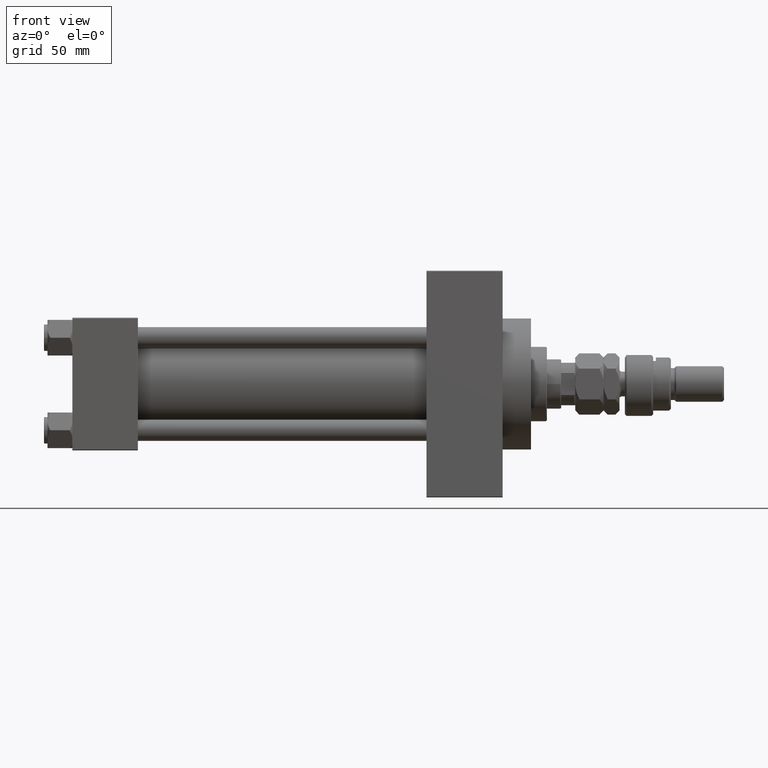
[diagram: clean part render]
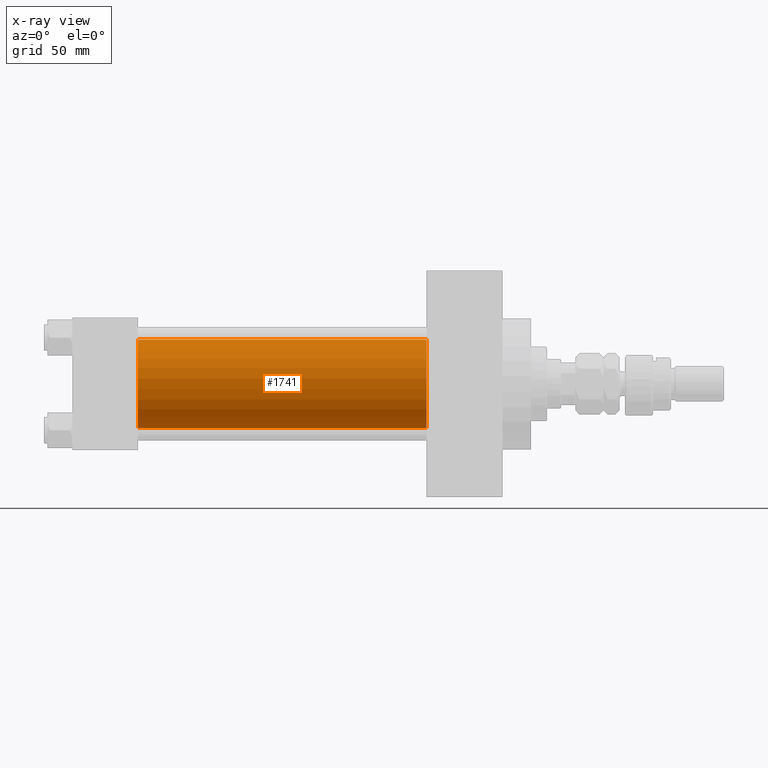
[diagram: x-ray — body ghosted, one internal face saturated and labeled with its STEP entity id]
A machine part, front view, then the same camera in x-ray: the body is ghosted and one INTERNAL B-rep face — a face not visible from any outside direction — is saturated and labeled: STEP entity #1741.
In plain terms, the highlighted cylindrical surface (partial cylindrical patch) has radius 25 mm, axis along (-1, -0, -0).
Its self-contained STEP definition (entity closure, byte-faithful):
#695 = EDGE_CURVE ( 'NONE', #18001, #48307, #4467, .T. ) ;
#868 = CARTESIAN_POINT ( 'NONE',  ( 37.00000000000000000, 4.595317839031724996E-16, -25.00000000000000000 ) ) ;
#936 = DIRECTION ( 'NONE',  ( 0.000000000000000000, 0.000000000000000000, -1.000000000000000000 ) ) ;
#976 = CIRCLE ( 'NONE', #50961, 25.00000000000000000 ) ;
#1741 = ADVANCED_FACE ( 'NONE', ( #2049 ), #22673, .F. ) ;
#2049 = FACE_OUTER_BOUND ( 'NONE', #13775, .T. ) ;
#2731 = VECTOR ( 'NONE', #35656, 1000.000000000000000 ) ;
#4467 = LINE ( 'NONE', #33042, #33812 ) ;
#5412 = CARTESIAN_POINT ( 'NONE',  ( 37.00000000000000000, -2.602085213965210642E-15, 0.000000000000000000 ) ) ;
#5842 = EDGE_CURVE ( 'NONE', #13309, #48307, #976, .T. ) ;
#5986 = AXIS2_PLACEMENT_3D ( 'NONE', #51010, #38602, #42070 ) ;
#7592 = DIRECTION ( 'NONE',  ( 0.000000000000000000, 0.000000000000000000, -1.000000000000000000 ) ) ;
#7838 = CARTESIAN_POINT ( 'NONE',  ( 200.0000000000000000, -2.602085213965210642E-15, 25.00000000000000000 ) ) ;
#7888 = EDGE_CURVE ( 'NONE', #12688, #13309, #52063, .T. ) ;
#12685 = CIRCLE ( 'NONE', #38064, 25.00000000000000000 ) ;
#12688 = VERTEX_POINT ( 'NONE', #47632 ) ;
#13309 = VERTEX_POINT ( 'NONE', #27093 ) ;
#13775 = EDGE_LOOP ( 'NONE', ( #30076, #30494, #16901, #42257 ) ) ;
#16901 = ORIENTED_EDGE ( 'NONE', *, *, #5842, .F. ) ;
#17142 = DIRECTION ( 'NONE',  ( -1.000000000000000000, -0.000000000000000000, -0.000000000000000000 ) ) ;
#18001 = VERTEX_POINT ( 'NONE', #33907 ) ;
#19511 = DIRECTION ( 'NONE',  ( 1.000000000000000000, 0.000000000000000000, 0.000000000000000000 ) ) ;
#20796 = DIRECTION ( 'NONE',  ( 1.000000000000000000, 0.000000000000000000, 0.000000000000000000 ) ) ;
#22673 = CYLINDRICAL_SURFACE ( 'NONE', #5986, 25.00000000000000000 ) ;
#27093 = CARTESIAN_POINT ( 'NONE',  ( 37.00000000000000000, -2.602085213965210642E-15, 25.00000000000000000 ) ) ;
#30076 = ORIENTED_EDGE ( 'NONE', *, *, #34254, .T. ) ;
#30494 = ORIENTED_EDGE ( 'NONE', *, *, #695, .T. ) ;
#33042 = CARTESIAN_POINT ( 'NONE',  ( 200.0000000000000000, 4.595317839031724996E-16, -25.00000000000000000 ) ) ;
#33812 = VECTOR ( 'NONE', #17142, 1000.000000000000000 ) ;
#33907 = CARTESIAN_POINT ( 'NONE',  ( 200.0000000000000000, 4.595317839031724996E-16, -25.00000000000000000 ) ) ;
#34254 = EDGE_CURVE ( 'NONE', #12688, #18001, #12685, .T. ) ;
#35656 = DIRECTION ( 'NONE',  ( -1.000000000000000000, -0.000000000000000000, -0.000000000000000000 ) ) ;
#38064 = AXIS2_PLACEMENT_3D ( 'NONE', #46373, #19511, #7592 ) ;
#38602 = DIRECTION ( 'NONE',  ( -1.000000000000000000, -0.000000000000000000, -0.000000000000000000 ) ) ;
#42070 = DIRECTION ( 'NONE',  ( 0.000000000000000000, 0.000000000000000000, 1.000000000000000000 ) ) ;
#42257 = ORIENTED_EDGE ( 'NONE', *, *, #7888, .F. ) ;
#46373 = CARTESIAN_POINT ( 'NONE',  ( 200.0000000000000000, -2.602085213965210642E-15, 0.000000000000000000 ) ) ;
#47632 = CARTESIAN_POINT ( 'NONE',  ( 200.0000000000000000, -2.602085213965210642E-15, 25.00000000000000000 ) ) ;
#48307 = VERTEX_POINT ( 'NONE', #868 ) ;
#50961 = AXIS2_PLACEMENT_3D ( 'NONE', #5412, #20796, #936 ) ;
#51010 = CARTESIAN_POINT ( 'NONE',  ( 200.0000000000000000, -2.602085213965210642E-15, 0.000000000000000000 ) ) ;
#52063 = LINE ( 'NONE', #7838, #2731 ) ;